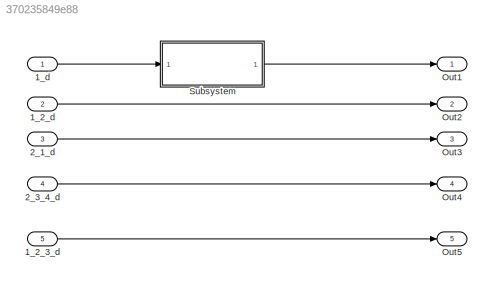
MODEL slx_370235849e88
KIND model
CONFIG AbsTol = auto
CONFIG EnableMultiTasking = off
CONFIG FixedStep = 0.200000
CONFIG MaxStep = auto
CONFIG MinStep = auto
CONFIG RelTol = 1e-3
CONFIG SampleTimeConstraint = Unconstrained
CONFIG Solver = FixedStepDiscrete
CONFIG SolverName = FixedStepDiscrete
CONFIG StartTime = 0.0
CONFIG StopTime = 10.0
BLOCK [Inport] 1_2_3_d
  IconDisplay = Port number
  Port = 5
  PortDimensions = [1 2 3]
BLOCK [Inport] 1_2_d
  IconDisplay = Port number
  OutDataTypeStr = double
  Port = 2
  PortDimensions = [1 2]
BLOCK [Inport] 1_d
  IconDisplay = Port number
BLOCK [Inport] 2_1_d
  IconDisplay = Port number
  Port = 3
  PortDimensions = [2 1]
BLOCK [Inport] 2_3_4_d
  IconDisplay = Port number
  Port = 4
  PortDimensions = [2 3 4]
BLOCK [Outport] Out1
  IconDisplay = Port number
  OutMax = 5
  OutMin = 1
BLOCK [Outport] Out2
  IconDisplay = Port number
  Port = 2
BLOCK [Outport] Out3
  IconDisplay = Port number
  Port = 3
BLOCK [Outport] Out4
  IconDisplay = Port number
  Port = 4
BLOCK [Outport] Out5
  IconDisplay = Port number
  Port = 5
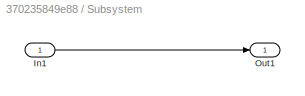
BLOCK [SubSystem] Subsystem
  Ports = [1, 1]
  RequestExecContextInheritance = off
  Variant = off
BLOCK [Inport] Subsystem/In1
  IconDisplay = Port number
BLOCK [Outport] Subsystem/Out1
  IconDisplay = Port number
LINE 1_2_3_d:1 -> Out5:1
LINE 1_2_d:1 -> Out2:1
LINE 1_d:1 -> Subsystem:1
LINE 2_1_d:1 -> Out3:1
LINE 2_3_4_d:1 -> Out4:1
LINE Subsystem/In1:1 -> Subsystem/Out1:1
LINE Subsystem:1 -> Out1:1
